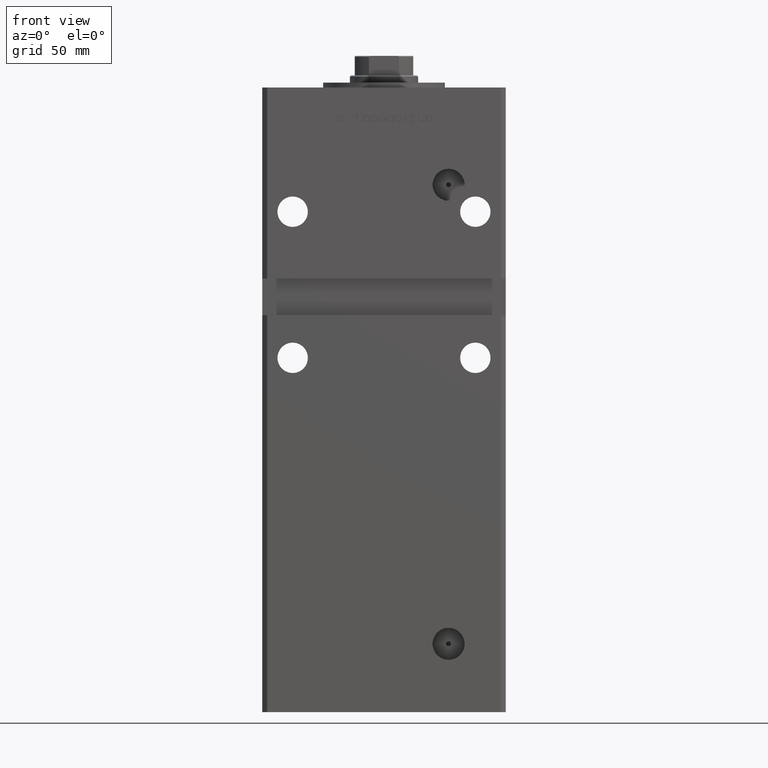
[diagram: clean part render]
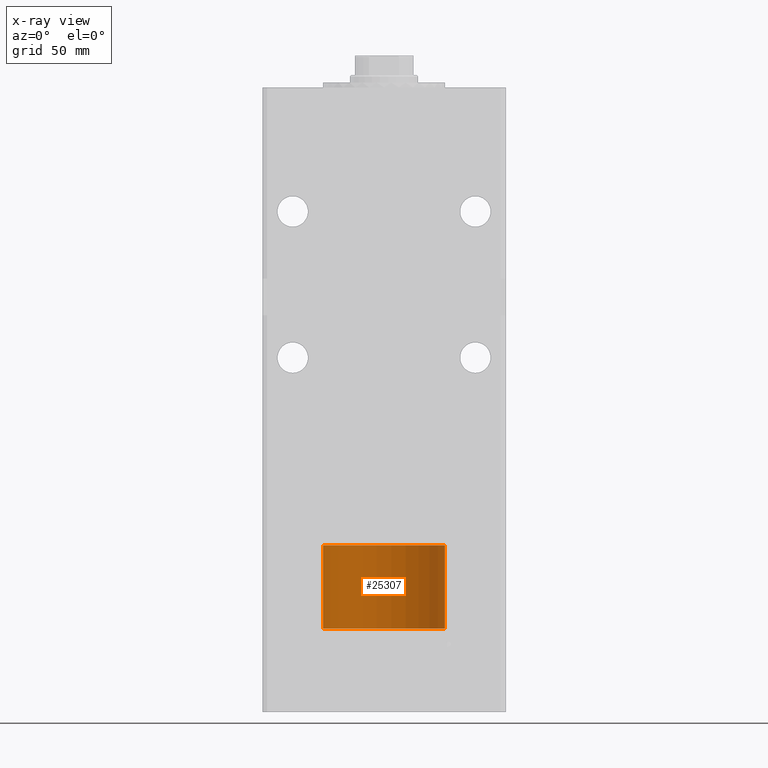
[diagram: x-ray — body ghosted, one internal face saturated and labeled with its STEP entity id]
A machine part, front view, then the same camera in x-ray: the body is ghosted and one INTERNAL B-rep face — a face not visible from any outside direction — is saturated and labeled: STEP entity #25307.
In plain terms, the highlighted cylindrical surface (partial cylindrical patch) has radius 25 mm, axis along (-0, -0, -1).
Its self-contained STEP definition (entity closure, byte-faithful):
#2991 = ORIENTED_EDGE ( 'NONE', *, *, #39850, .T. ) ;
#3901 = DIRECTION ( 'NONE',  ( -0.000000000000000000, -0.000000000000000000, -1.000000000000000000 ) ) ;
#4211 = CARTESIAN_POINT ( 'NONE',  ( -25.00000000000000000, 0.000000000000000000, 34.25000000000000000 ) ) ;
#6305 = AXIS2_PLACEMENT_3D ( 'NONE', #24328, #3901, #48256 ) ;
#8932 = CARTESIAN_POINT ( 'NONE',  ( 0.000000000000000000, 0.000000000000000000, 34.25000000000000000 ) ) ;
#9599 = DIRECTION ( 'NONE',  ( -0.000000000000000000, -0.000000000000000000, -1.000000000000000000 ) ) ;
#9983 = VERTEX_POINT ( 'NONE', #38566 ) ;
#15406 = EDGE_CURVE ( 'NONE', #9983, #43747, #20696, .T. ) ;
#16030 = VECTOR ( 'NONE', #45572, 1000.000000000000000 ) ;
#16693 = EDGE_LOOP ( 'NONE', ( #31989, #2991, #29190, #51012 ) ) ;
#17293 = AXIS2_PLACEMENT_3D ( 'NONE', #35217, #19886, #19614 ) ;
#19614 = DIRECTION ( 'NONE',  ( 1.000000000000000000, 0.000000000000000000, 0.000000000000000000 ) ) ;
#19726 = VERTEX_POINT ( 'NONE', #4211 ) ;
#19886 = DIRECTION ( 'NONE',  ( 0.000000000000000000, 0.000000000000000000, 1.000000000000000000 ) ) ;
#20696 = CIRCLE ( 'NONE', #17293, 25.00000000000000000 ) ;
#21119 = CARTESIAN_POINT ( 'NONE',  ( 25.00000000000000000, 3.061616997868383043E-15, 34.25000000000000000 ) ) ;
#21286 = DIRECTION ( 'NONE',  ( 1.000000000000000000, 0.000000000000000000, 0.000000000000000000 ) ) ;
#22594 = EDGE_CURVE ( 'NONE', #19726, #43747, #50985, .T. ) ;
#22932 = CARTESIAN_POINT ( 'NONE',  ( -25.00000000000000000, 0.000000000000000000, 0.000000000000000000 ) ) ;
#23938 = AXIS2_PLACEMENT_3D ( 'NONE', #8932, #46560, #21286 ) ;
#24227 = VECTOR ( 'NONE', #9599, 1000.000000000000000 ) ;
#24328 = CARTESIAN_POINT ( 'NONE',  ( 0.000000000000000000, 0.000000000000000000, 34.25000000000000000 ) ) ;
#25307 = ADVANCED_FACE ( 'NONE', ( #28642 ), #44764, .T. ) ;
#27399 = CIRCLE ( 'NONE', #23938, 25.00000000000000000 ) ;
#28642 = FACE_OUTER_BOUND ( 'NONE', #16693, .T. ) ;
#29188 = LINE ( 'NONE', #21119, #16030 ) ;
#29190 = ORIENTED_EDGE ( 'NONE', *, *, #15406, .T. ) ;
#29764 = CARTESIAN_POINT ( 'NONE',  ( -25.00000000000000000, 0.000000000000000000, 34.25000000000000000 ) ) ;
#31989 = ORIENTED_EDGE ( 'NONE', *, *, #45988, .F. ) ;
#32947 = VERTEX_POINT ( 'NONE', #48667 ) ;
#35217 = CARTESIAN_POINT ( 'NONE',  ( 0.000000000000000000, 0.000000000000000000, 0.000000000000000000 ) ) ;
#38566 = CARTESIAN_POINT ( 'NONE',  ( 25.00000000000000000, 3.061616997868383043E-15, 0.000000000000000000 ) ) ;
#39850 = EDGE_CURVE ( 'NONE', #32947, #9983, #29188, .T. ) ;
#43747 = VERTEX_POINT ( 'NONE', #22932 ) ;
#44764 = CYLINDRICAL_SURFACE ( 'NONE', #6305, 25.00000000000000000 ) ;
#45572 = DIRECTION ( 'NONE',  ( -0.000000000000000000, -0.000000000000000000, -1.000000000000000000 ) ) ;
#45988 = EDGE_CURVE ( 'NONE', #32947, #19726, #27399, .T. ) ;
#46560 = DIRECTION ( 'NONE',  ( 0.000000000000000000, 0.000000000000000000, 1.000000000000000000 ) ) ;
#48256 = DIRECTION ( 'NONE',  ( -1.000000000000000000, 0.000000000000000000, 0.000000000000000000 ) ) ;
#48667 = CARTESIAN_POINT ( 'NONE',  ( 25.00000000000000000, 3.061616997868383043E-15, 34.25000000000000000 ) ) ;
#50985 = LINE ( 'NONE', #29764, #24227 ) ;
#51012 = ORIENTED_EDGE ( 'NONE', *, *, #22594, .F. ) ;